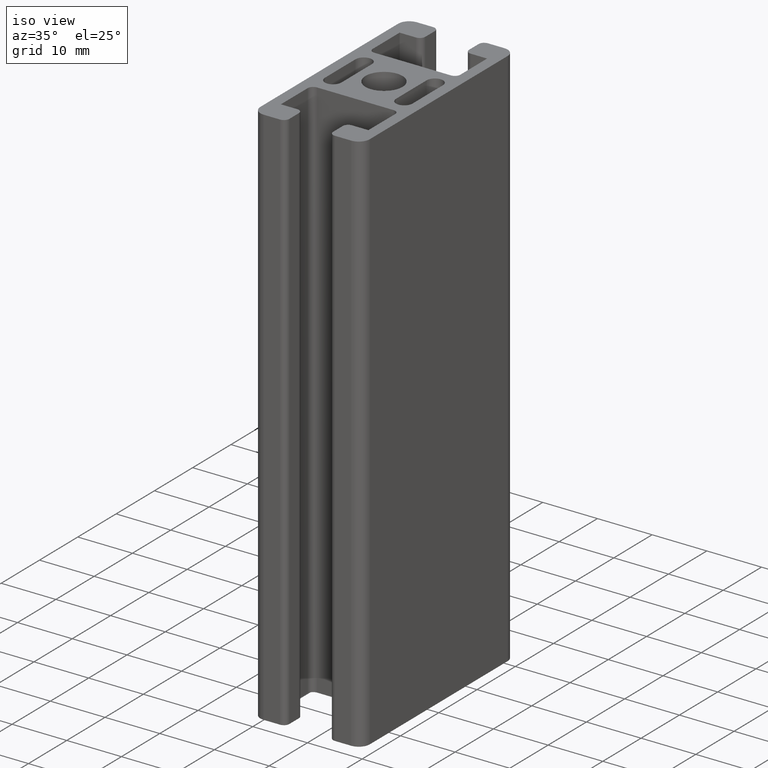
[diagram: clean part render]
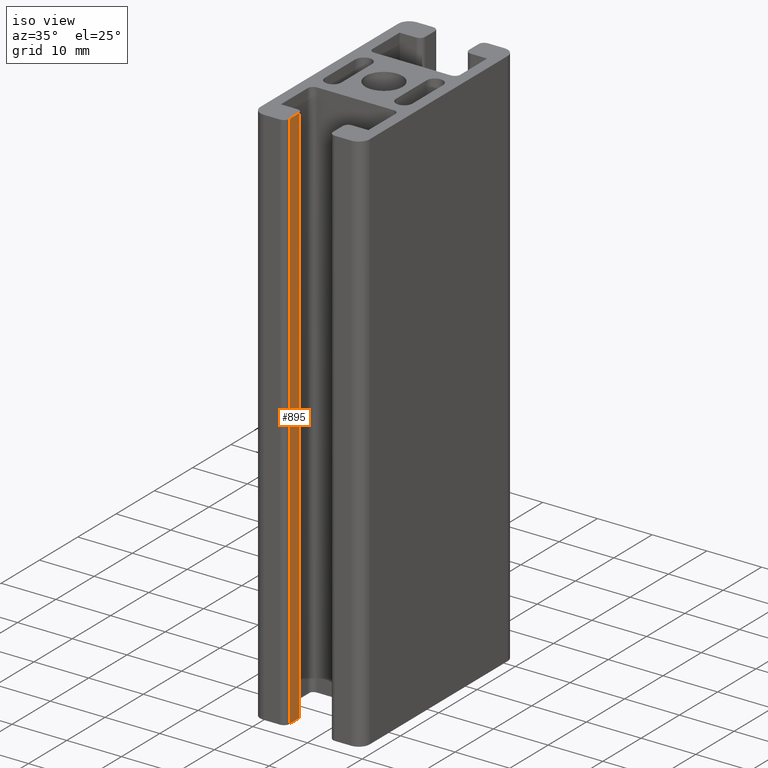
[diagram: same view with one face highlighted and labeled with its STEP entity id]
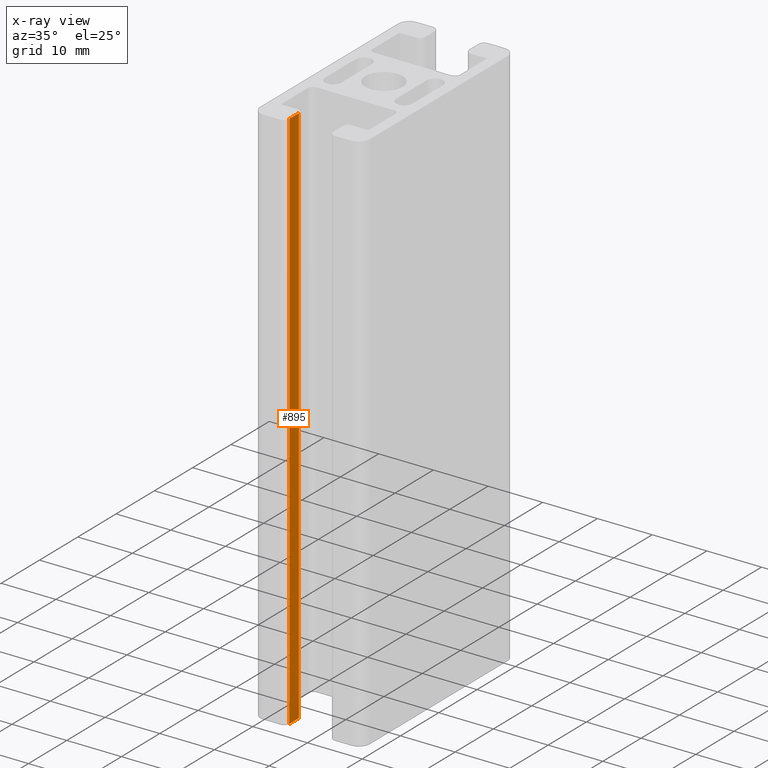
[diagram: x-ray of the same camera — body ghosted, the highlighted face saturated]
A machine part, iso view. The second image highlights one B-rep face of the part: STEP entity #895.
The next image is the same camera in x-ray: the body ghosted, the highlighted face saturated — about 0% of this face is hidden behind the body in this view.
In plain terms, the highlighted planar face has unit normal (-1, 0, 0).
Its self-contained STEP definition (entity closure, byte-faithful):
#28=LINE('',#1345,#120);
#29=LINE('',#1348,#121);
#30=LINE('',#1350,#122);
#31=LINE('',#1351,#123);
#120=VECTOR('',#1071,100.);
#121=VECTOR('',#1074,2.50000399190595);
#122=VECTOR('',#1075,2.50000399190595);
#123=VECTOR('',#1076,100.);
#202=PLANE('',#952);
#239=FACE_OUTER_BOUND('',#287,.T.);
#287=EDGE_LOOP('',(#625,#626,#627,#628));
#390=VERTEX_POINT('',#1339);
#392=VERTEX_POINT('',#1343);
#393=VERTEX_POINT('',#1347);
#394=VERTEX_POINT('',#1349);
#486=EDGE_CURVE('',#392,#390,#28,.T.);
#487=EDGE_CURVE('',#390,#393,#29,.T.);
#488=EDGE_CURVE('',#394,#392,#30,.T.);
#489=EDGE_CURVE('',#394,#393,#31,.T.);
#625=ORIENTED_EDGE('',*,*,#487,.F.);
#626=ORIENTED_EDGE('',*,*,#486,.F.);
#627=ORIENTED_EDGE('',*,*,#488,.F.);
#628=ORIENTED_EDGE('',*,*,#489,.T.);
#895=ADVANCED_FACE('',(#239),#202,.F.);
#952=AXIS2_PLACEMENT_3D('',#1346,#1072,#1073);
#1071=DIRECTION('',(0.,0.,1.));
#1072=DIRECTION('center_axis',(-1.,8.88177001492502E-16,0.));
#1073=DIRECTION('ref_axis',(0.,0.,1.));
#1074=DIRECTION('',(8.88177001492502E-16,1.,0.));
#1075=DIRECTION('',(-8.88177001492502E-16,-1.,0.));
#1076=DIRECTION('',(0.,0.,1.));
#1339=CARTESIAN_POINT('',(-4.,-19.000001995953,100.));
#1343=CARTESIAN_POINT('',(-4.,-19.000001995953,0.));
#1345=CARTESIAN_POINT('',(-4.,-19.000001995953,0.));
#1346=CARTESIAN_POINT('Origin',(-4.,-19.000001995953,0.));
#1347=CARTESIAN_POINT('',(-4.,-16.499998004047,100.));
#1348=CARTESIAN_POINT('',(-3.99999999999999,-9.50000099797649,100.));
#1349=CARTESIAN_POINT('',(-4.,-16.499998004047,0.));
#1350=CARTESIAN_POINT('',(-3.99999999999999,-9.50000099797649,0.));
#1351=CARTESIAN_POINT('',(-4.,-16.499998004047,0.));